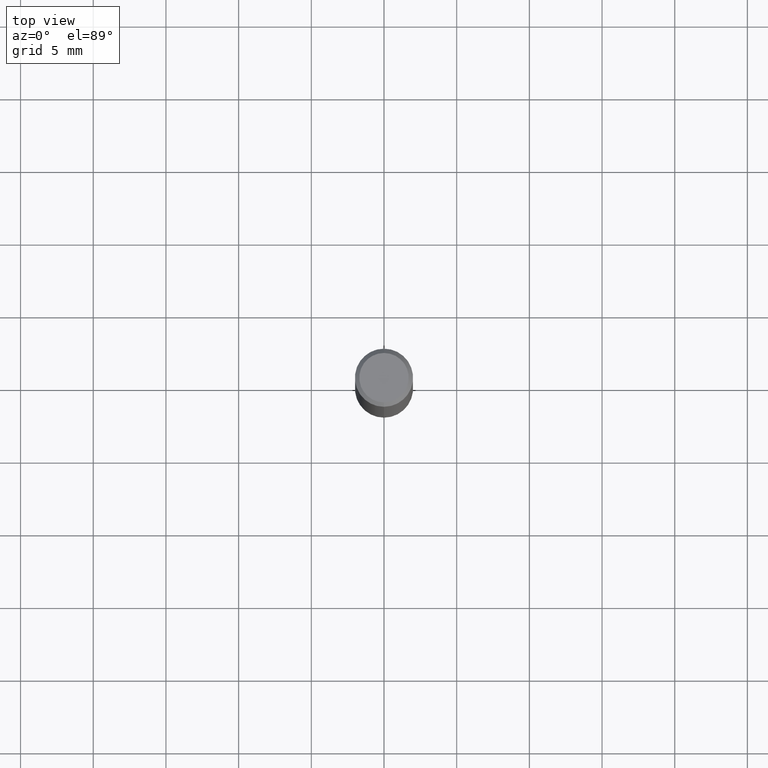
[diagram: clean part render]
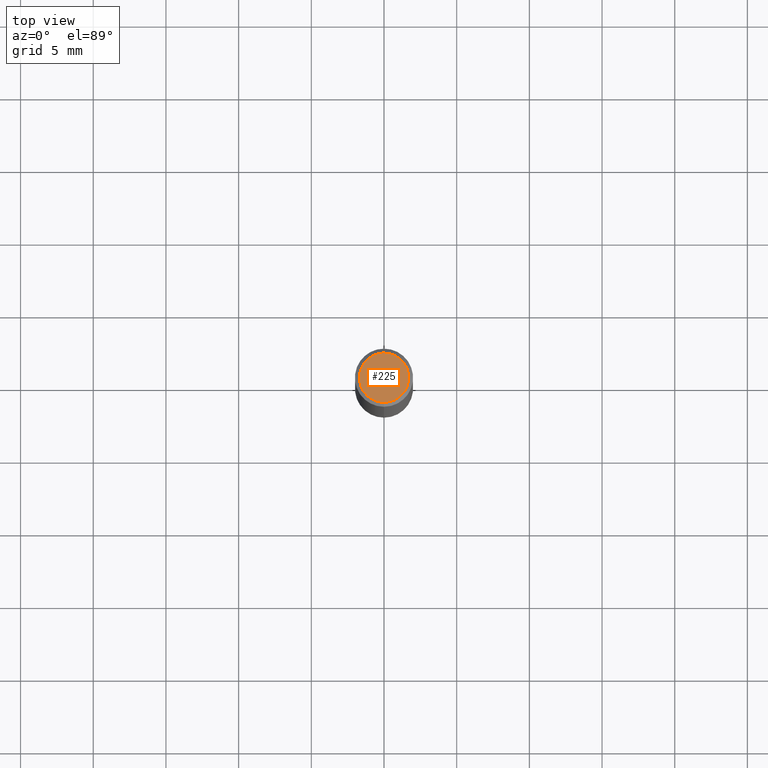
[diagram: same view with one face highlighted and labeled with its STEP entity id]
A machine part, top view. The second image highlights one B-rep face of the part: STEP entity #225.
In plain terms, the highlighted planar face has unit normal (-0, 0, 1).
Its self-contained STEP definition (entity closure, byte-faithful):
#225=ADVANCED_FACE('',(#471),#472,.T.);
#287=VERTEX_POINT('',#541);
#301=EDGE_CURVE('',#287,#351,#559,.T.);
#329=EDGE_CURVE('',#351,#287,#590,.T.);
#351=VERTEX_POINT('',#616);
#471=FACE_OUTER_BOUND('',#756,.T.);
#472=PLANE('',#757);
#541=CARTESIAN_POINT('',(0.0,1.7,0.00999999999999801));
#559=CIRCLE('',#866,1.7);
#590=CIRCLE('',#903,1.7);
#616=CARTESIAN_POINT('',(2.08183080149804E-016,-1.7,0.00999999999999801));
#756=EDGE_LOOP('',(#1069,#1070));
#757=AXIS2_PLACEMENT_3D('',#1071,#1072,#1073);
#866=AXIS2_PLACEMENT_3D('',#1186,#1187,#1188);
#903=AXIS2_PLACEMENT_3D('',#1228,#1229,#1230);
#1069=ORIENTED_EDGE('',*,*,#301,.F.);
#1070=ORIENTED_EDGE('',*,*,#329,.F.);
#1071=CARTESIAN_POINT('',(0.0,0.85,0.00999999999999801));
#1072=DIRECTION('',(-0.0,0.0,1.0));
#1073=DIRECTION('',(0.0,-1.0,0.0));
#1186=CARTESIAN_POINT('',(0.0,0.0,0.00999999999999801));
#1187=DIRECTION('',(0.0,0.0,-1.0));
#1188=DIRECTION('',(0.0,1.0,0.0));
#1228=CARTESIAN_POINT('',(0.0,0.0,0.00999999999999801));
#1229=DIRECTION('',(0.0,0.0,-1.0));
#1230=DIRECTION('',(0.0,1.0,0.0));